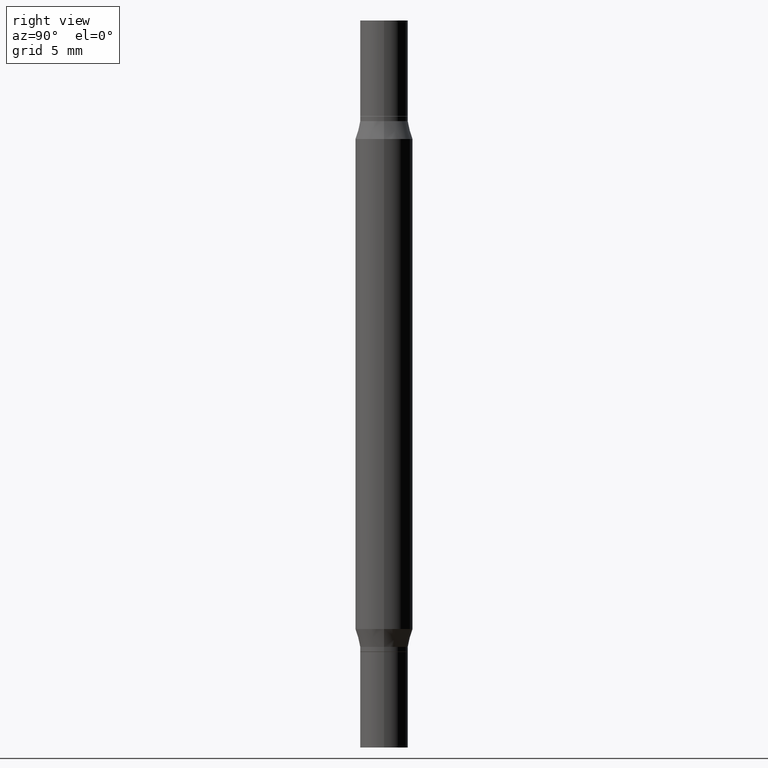
[diagram: clean part render]
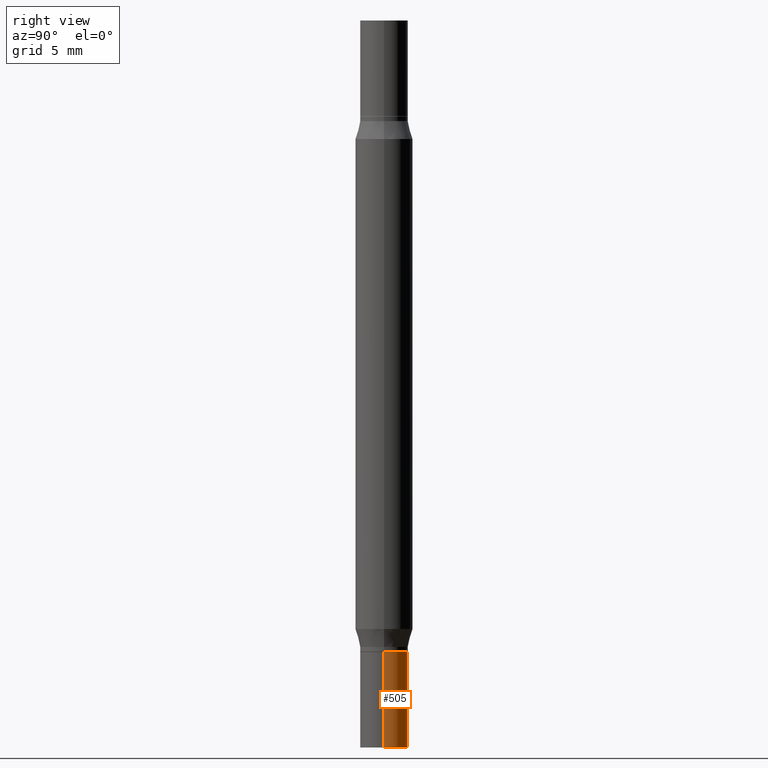
[diagram: same view with one face highlighted and labeled with its STEP entity id]
A machine part, right view. The second image highlights one B-rep face of the part: STEP entity #505.
In plain terms, the highlighted cylindrical surface (edge-blend (fillet) strip) has radius 1.2497 mm, axis along (-0, 0, 1).
Its self-contained STEP definition (entity closure, byte-faithful):
#12 = CARTESIAN_POINT ( 'NONE',  ( 3.658665880933582389E-29, -5.223605231043229660E-15, -1.496099999999999985 ) ) ;
#28 = CARTESIAN_POINT ( 'NONE',  ( 0.000000000000000000, 0.000000000000000000, 0.000000000000000000 ) ) ;
#38 = CARTESIAN_POINT ( 'NONE',  ( -0.04920000000000000068, -4.530281867240153147E-15, -1.496099999999999985 ) ) ;
#57 = CARTESIAN_POINT ( 'NONE',  ( 0.04920000000000000068, -3.435617637421643269E-16, 2.399078973691600472E-30 ) ) ;
#62 = DIRECTION ( 'NONE',  ( -2.445468806185136597E-29, 3.491481338843145583E-15, 1.000000000000000000 ) ) ;
#105 = DIRECTION ( 'NONE',  ( -2.445468806185136597E-29, 3.491481338843145583E-15, 1.000000000000000000 ) ) ;
#113 = EDGE_CURVE ( 'NONE', #450, #176, #898, .T. ) ;
#141 = ORIENTED_EDGE ( 'NONE', *, *, #948, .F. ) ;
#173 = CARTESIAN_POINT ( 'NONE',  ( -0.04920000000000000068, -4.530281867240153147E-15, -1.299199999999999910 ) ) ;
#174 = VECTOR ( 'NONE', #669, 39.37007874015748143 ) ;
#176 = VERTEX_POINT ( 'NONE', #38 ) ;
#199 = ORIENTED_EDGE ( 'NONE', *, *, #113, .T. ) ;
#251 = EDGE_CURVE ( 'NONE', #176, #391, #747, .T. ) ;
#280 = VECTOR ( 'NONE', #664, 39.37007874015748143 ) ;
#345 = DIRECTION ( 'NONE',  ( -2.445468806185136597E-29, 3.491481338843145583E-15, 1.000000000000000000 ) ) ;
#379 = EDGE_LOOP ( 'NONE', ( #199, #633, #141, #454 ) ) ;
#391 = VERTEX_POINT ( 'NONE', #173 ) ;
#407 = DIRECTION ( 'NONE',  ( 1.000000000000000000, -6.982962677686266711E-15, 4.876176775795935793E-29 ) ) ;
#447 = LINE ( 'NONE', #57, #280 ) ;
#450 = VERTEX_POINT ( 'NONE', #685 ) ;
#454 = ORIENTED_EDGE ( 'NONE', *, *, #916, .F. ) ;
#461 = AXIS2_PLACEMENT_3D ( 'NONE', #12, #62, #973 ) ;
#487 = CARTESIAN_POINT ( 'NONE',  ( 3.177153072995728757E-29, -4.536132555425014733E-15, -1.299199999999999910 ) ) ;
#505 = ADVANCED_FACE ( 'NONE', ( #712 ), #862, .T. ) ;
#534 = CIRCLE ( 'NONE', #845, 0.04920000000000000068 ) ;
#627 = VERTEX_POINT ( 'NONE', #793 ) ;
#633 = ORIENTED_EDGE ( 'NONE', *, *, #251, .T. ) ;
#642 = AXIS2_PLACEMENT_3D ( 'NONE', #28, #345, #407 ) ;
#664 = DIRECTION ( 'NONE',  ( -2.445468806185136877E-29, 3.491481338843145188E-15, 1.000000000000000000 ) ) ;
#669 = DIRECTION ( 'NONE',  ( -2.445468806185136877E-29, 3.491481338843145188E-15, 1.000000000000000000 ) ) ;
#678 = CARTESIAN_POINT ( 'NONE',  ( -0.04920000000000000068, 3.495870259939692963E-16, -2.420116064405413767E-30 ) ) ;
#685 = CARTESIAN_POINT ( 'NONE',  ( 0.04920000000000000068, -5.567166994785393395E-15, -1.496099999999999985 ) ) ;
#712 = FACE_OUTER_BOUND ( 'NONE', #379, .T. ) ;
#747 = LINE ( 'NONE', #678, #174 ) ;
#793 = CARTESIAN_POINT ( 'NONE',  ( 0.04920000000000000068, -4.879694319167179257E-15, -1.299199999999999910 ) ) ;
#845 = AXIS2_PLACEMENT_3D ( 'NONE', #487, #105, #942 ) ;
#862 = CYLINDRICAL_SURFACE ( 'NONE', #642, 0.04920000000000000068 ) ;
#898 = CIRCLE ( 'NONE', #461, 0.04920000000000000068 ) ;
#916 = EDGE_CURVE ( 'NONE', #450, #627, #447, .T. ) ;
#942 = DIRECTION ( 'NONE',  ( 1.000000000000000000, -6.982962677686261977E-15, 0.000000000000000000 ) ) ;
#948 = EDGE_CURVE ( 'NONE', #627, #391, #534, .T. ) ;
#973 = DIRECTION ( 'NONE',  ( 1.000000000000000000, -6.982962677686261977E-15, 0.000000000000000000 ) ) ;